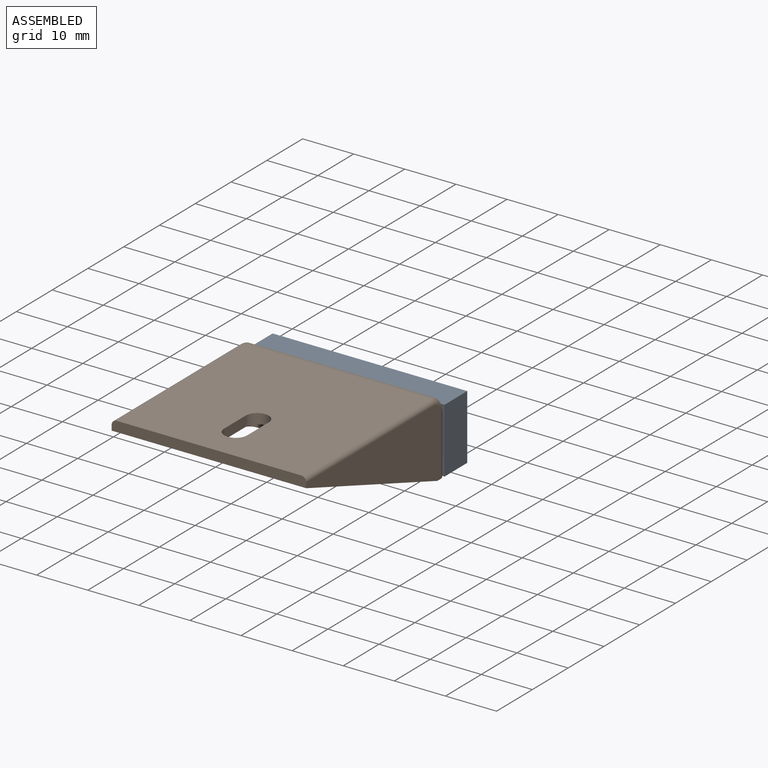
[diagram: assembled view]
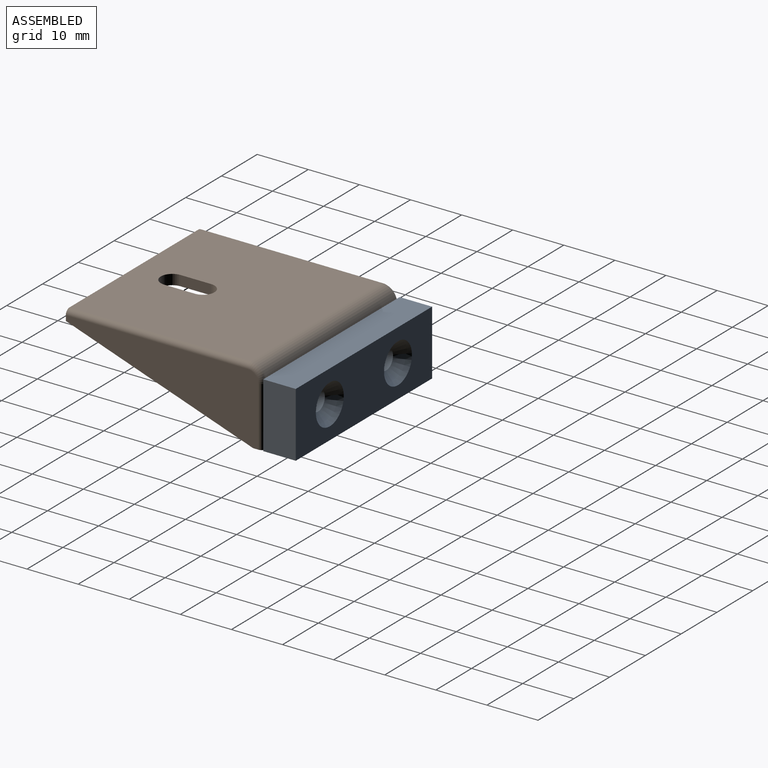
[diagram: assembled view, second angle]
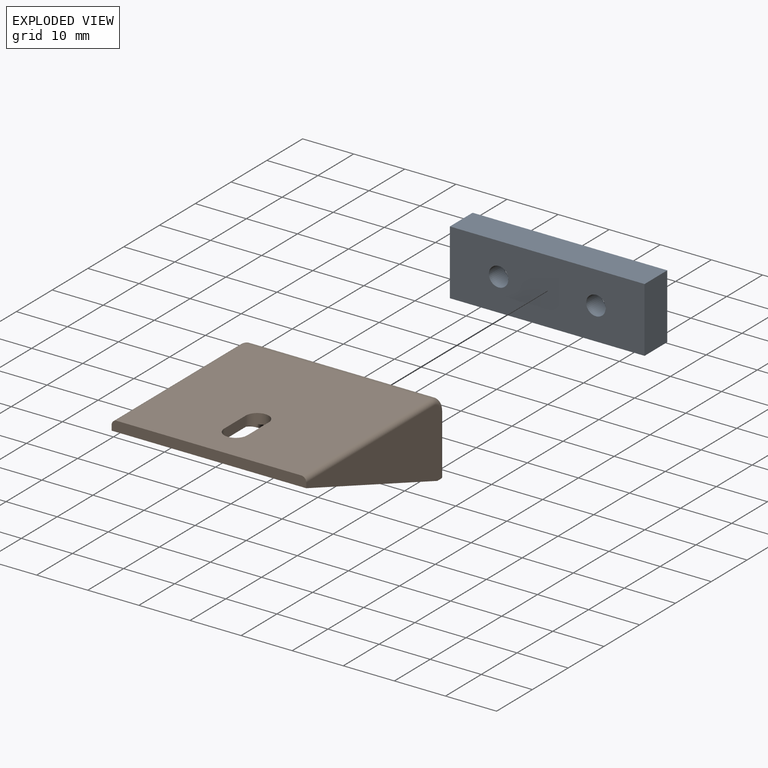
[diagram: exploded view]
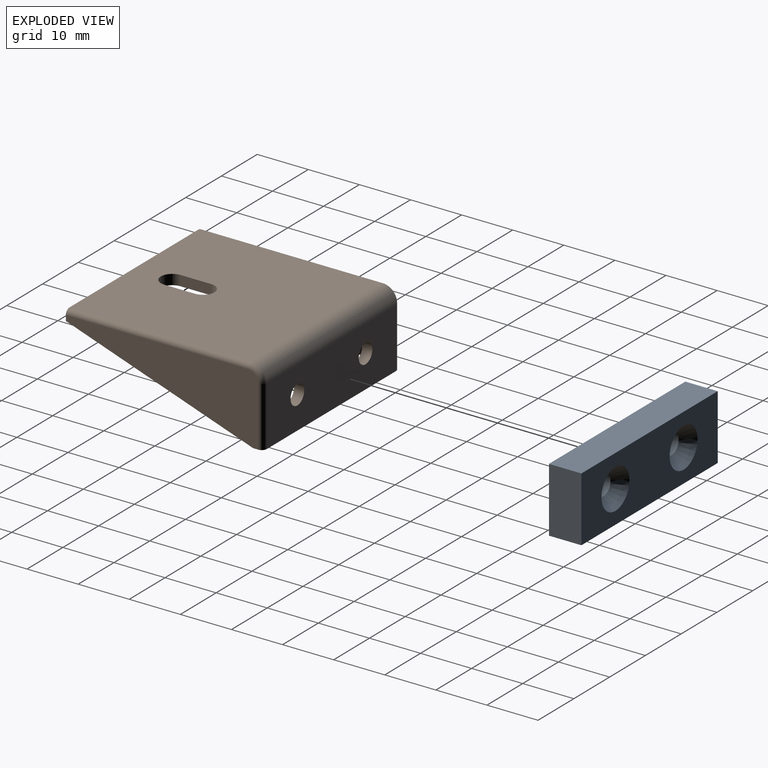
[diagram: exploded view, second angle]
ASSEMBLY  parts=2 mates=3
PART A: 10 faces, bbox 38.1x6.4x12.7 mm
  f0: plane 12.7x6.35mm, normal (1,0,0), area 80.6mm2, adj f1,f3,f4,f5
  f1: plane 38.1x6.35mm, normal (0,0,1), area 241.9mm2, adj f0,f2,f4,f5
  f2: plane 12.7x6.35mm, normal (-1,0,0), area 80.6mm2, adj f1,f3,f4,f5
  f3: plane 38.1x6.35mm, normal (0,0,-1), area 241.9mm2, adj f0,f2,f4,f5
  f4: plane 38.1x12.7mm, normal (0,-1,0), area 461.2mm2, adj f0,f1,f2,f3,f6,f8
  f5: plane 38.1x12.7mm, normal (0,1,0), area 388.4mm2, adj f0,f1,f2,f3,f7,f9
  f6: cylinder r=1.9mm len=4.05mm, axis (0,1,0), area 48.3mm2, adj f4,f7
  f7: cone r=1.9mm half-angle=41deg, axis (0,1,0), area 55.5mm2, adj f5,f6
  f8: cylinder r=1.9mm len=4.05mm, axis (0,1,0), area 48.3mm2, adj f4,f9
  f9: cone r=1.9mm half-angle=41deg, axis (0,1,0), area 55.5mm2, adj f5,f8
PART B: 32 faces, bbox 38.1x38.9x14.9 mm
  f0: plane 32.1x11.68mm, normal (0,-1,0), area 352.3mm2, adj f2,f5,f6,f7,f22,f25
  f1: plane 35.63x32.1mm, normal (0,0,-1), area 1100.9mm2, adj f2,f9,f10,f11,f12,f13,f20,f23
  f2: cylinder r=1.02mm len=32.1mm, axis (-1,0,0), area 51.2mm2, adj f0,f1,f21,f24
  f3: plane 37.65x13.7mm, normal (-1,0,0), area 282.2mm2, adj f5,f9,f18,f29,f30,f31
  f4: plane 37.65x13.7mm, normal (1,0,0), area 282.2mm2, adj f5,f9,f16,f26,f27,f28
  f5: plane 38.1x2mm, normal (0,0,-1), area 75.8mm2, adj f0,f3,f4,f8,f16,f18,f26,f29
  f6: cylinder r=1.91mm len=3.81mm, axis (0,-1,0), area 23.9mm2, adj f0,f8
  f7: cylinder r=1.91mm len=3.81mm, axis (0,-1,0), area 23.9mm2, adj f0,f8
  f8: plane 36.1x11.68mm, normal (0,1,0), area 399mm2, adj f5,f6,f7,f15,f26,f29
  f9: plane 38.1x2mm, normal (0,-1,0), area 75.8mm2, adj f1,f3,f4,f14,f16,f18,f28,f31
  f10: cylinder r=2.25mm len=4.5mm, axis (0,0,1), area 14.1mm2, adj f1,f11,f13,f14
  f11: plane 6x2mm, normal (-1,0,0), area 12mm2, adj f1,f10,f12,f14
  f12: cylinder r=2.25mm len=4.5mm, axis (0,0,1), area 14.1mm2, adj f1,f11,f13,f14
  f13: plane 6x2mm, normal (1,0,0), area 12mm2, adj f1,f10,f12,f14
  f14: plane 36.1x35.63mm, normal (0,0,1), area 1243.5mm2, adj f9,f10,f11,f12,f13,f15,f28,f31
  f15: cylinder r=3.02mm len=36.1mm, axis (-1,0,0), area 171mm2, adj f8,f14,f27,f30
  f16: plane 36.65x12.7mm, normal (0,-0.33,-0.94), area 78.5mm2, adj f4,f5,f9,f17,f23,f25
  f17: plane 32.76x11.35mm, normal (-1,0,0), area 186mm2, adj f16,f23,f24,f25
  f18: plane 36.65x12.7mm, normal (0,-0.33,-0.94), area 78.5mm2, adj f3,f5,f9,f19,f20,f22
  f19: plane 32.76x11.35mm, normal (1,0,0), area 186mm2, adj f18,f20,f21,f22
  f20: cylinder r=1mm len=35.63mm, axis (0,1,0), area 54.3mm2, adj f1,f18,f19,f21
  f21: torus R=0.02mm, axis (-1,0,0), area 1.6mm2, adj f2,f19,f20,f22
  f22: cylinder r=1mm len=11.68mm, axis (0,0,-1), area 18.2mm2, adj f0,f18,f19,f21
  f23: cylinder r=1mm len=35.63mm, axis (0,-1,0), area 54.3mm2, adj f1,f16,f17,f24
  f24: torus R=0.02mm, axis (1,0,0), area 1.6mm2, adj f2,f17,f23,f25
  f25: cylinder r=1mm len=11.68mm, axis (0,0,1), area 18.2mm2, adj f0,f16,f17,f24
  f26: cylinder r=1mm len=11.68mm, axis (0,0,-1), area 18.4mm2, adj f4,f5,f8,f27
  f27: torus R=2.02mm, axis (-1,0,0), area 6.5mm2, adj f4,f15,f26,f28
  f28: cylinder r=1mm len=35.63mm, axis (0,1,0), area 56mm2, adj f4,f9,f14,f27
  f29: cylinder r=1mm len=11.68mm, axis (0,0,1), area 18.4mm2, adj f3,f5,f8,f30
  f30: torus R=2.02mm, axis (-1,0,0), area 6.5mm2, adj f3,f15,f29,f31
  f31: cylinder r=1mm len=35.63mm, axis (0,1,0), area 56mm2, adj f3,f9,f14,f30
PLACE A t=(-25.8,22.86,-8.26)mm
PLACE B t=(-25.8,16.51,-8.26)mm
MATE cylindrical A.f6 <-> B.f7  axis (0,1,0) through (-16.27,20.55,-8.26)mm
MATE cylindrical A.f8 <-> B.f6  axis (0,1,0) through (-35.32,20.55,-8.26)mm
MATE planar A.f4 <-> B.f8  axis (0,-1,0) through (-25.8,16.51,-1.91)mm
